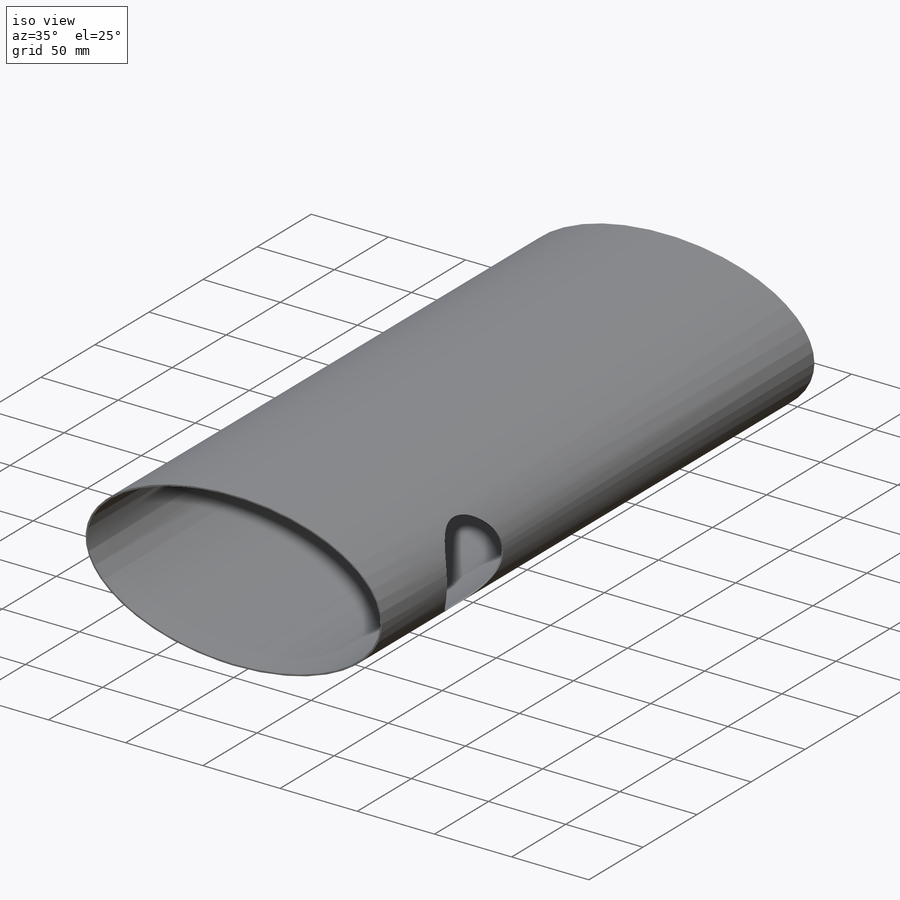
[diagram: iso view]
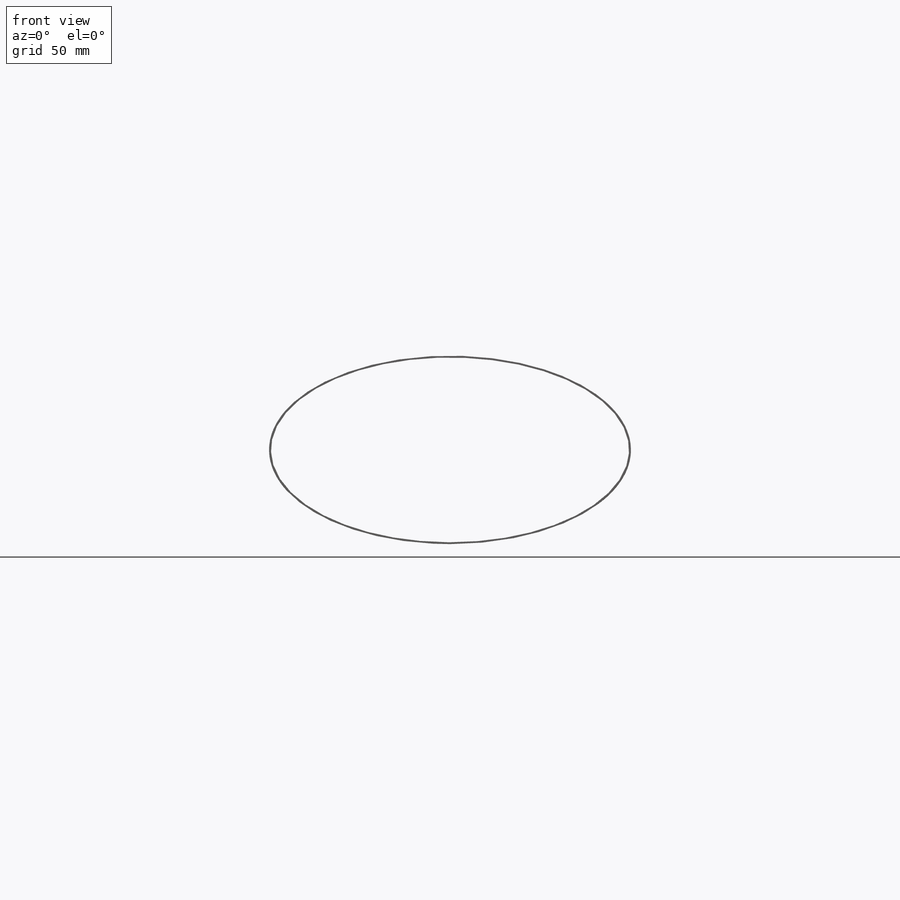
[diagram: front view]
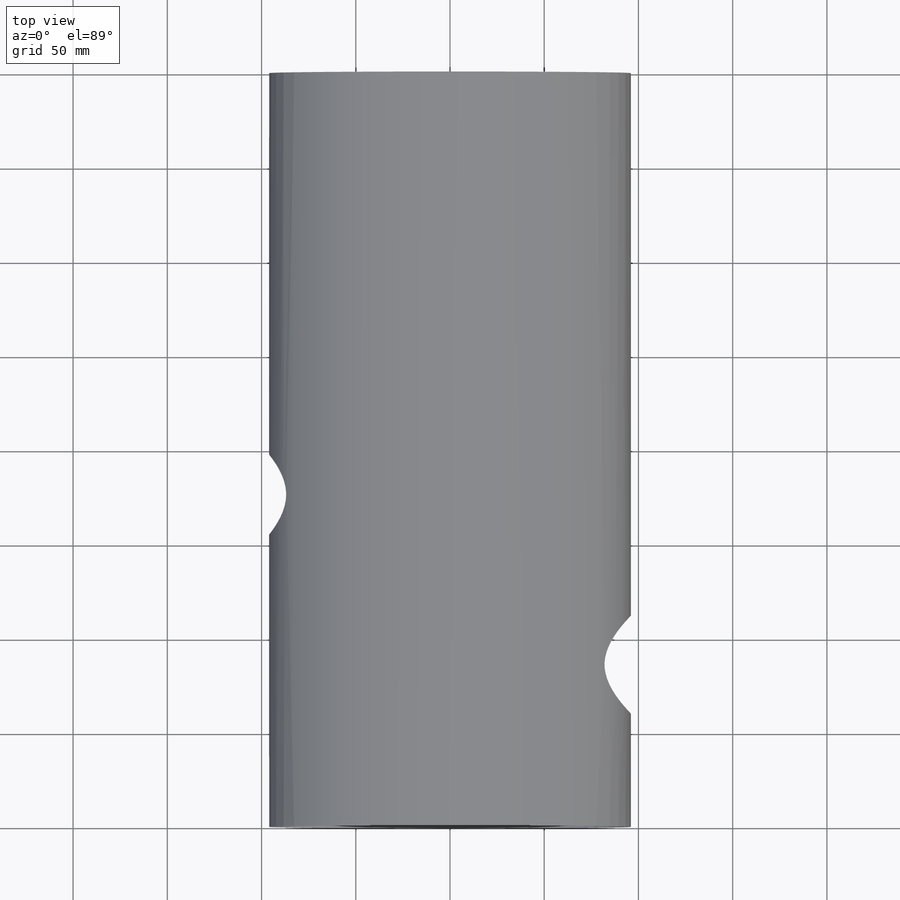
[diagram: top view]
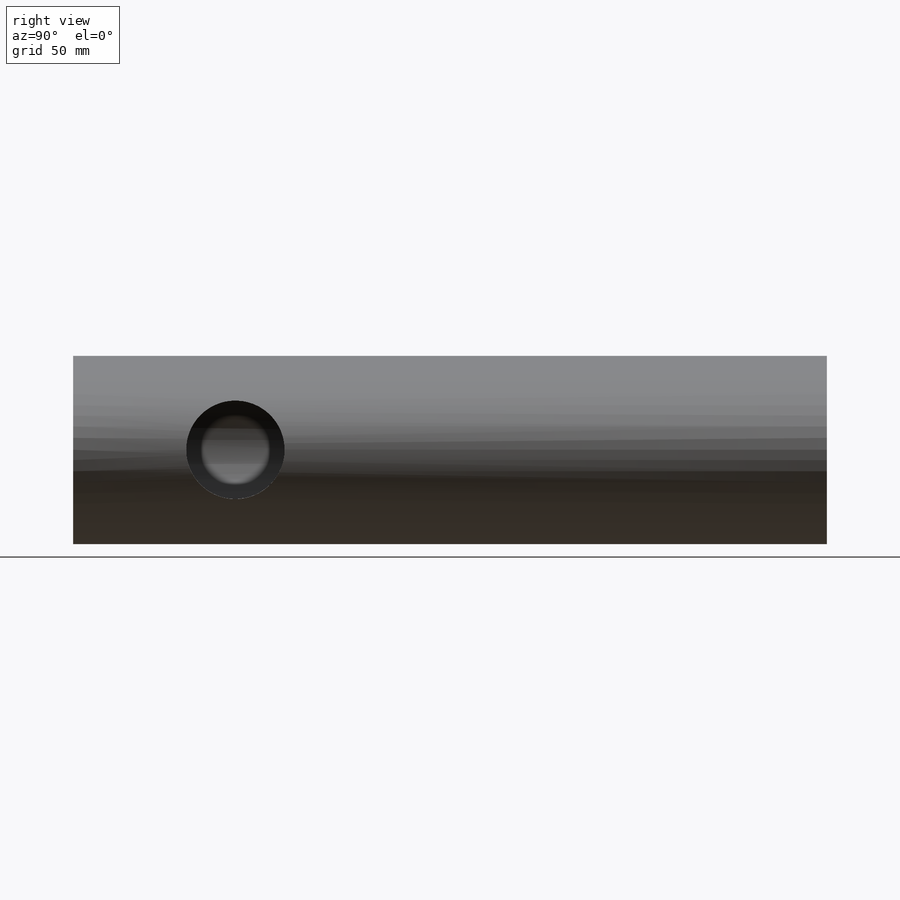
[diagram: right view]
SOLIDWORKS PART (.sldprt)
format: sldprt  version: not decoded by parser v0  size: 212,480 bytes
history: native  units: mm
features: sketch x5, cut_extrude x2, plane x2, material x1 (+11 scaffold rows collapsed)
feature tree (21):
  scaffold x11  (default folders/planes/origin — collapsed)
  material  "201 Annealed Stainless Steel (SS)"
  sketch  "Sketch1"  dims[D1=49.0mm]
  sketch  "Sketch3"  dims[D1=400.0mm D5=1.0mm D6=10.0mm D7=5.0mm]
  sketch  "Sketch4"  dims[D1=52.2mm D2=86.1mm]
  cut_extrude  "Cut-Extrude1"  Depth=100mm
  sketch  "Sketch5"  dims[D1=42.6mm D2=176.3mm]
  cut_extrude  "Cut-Extrude2"  Depth=100mm
  sketch  "Sketch6"  dims[D5=0.01mm D6=10.0mm D7=5.0mm]
  plane  "Plane1"
  plane  "Plane2"
decode coverage: 7 of 7 modeling features carry decoded parameters
note: suppression state not decoded; provenance and decode notes live in map.json
